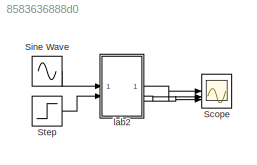
MODEL slx_8583636888d0
KIND model
CONFIG AbsTol = auto
CONFIG EnableMultiTasking = off
CONFIG FixedStep = 0.001
CONFIG MaxStep = auto
CONFIG MinStep = auto
CONFIG RelTol = 1e-3
CONFIG SampleTimeConstraint = Unconstrained
CONFIG SolverName = FixedStepAuto
CONFIG StartTime = 0.0
CONFIG StopTime = 20
BLOCK [Scope] Scope
  Floating = off
  NumInputPorts = 3
  ScopeSpecificationString = Simulink.scopes.TimeScopeBlockCfg('CurrentConfiguration', extmgr.ConfigurationSet(extmgr.Configuration('Core','General UI',true),extmgr.Configuration('Core','Source UI',true),extmgr.Configuration('Sources','WiredSimulink',true),extmgr.Configuration('Visuals','Time Domain',true),extmgr.Configuration('Tools','Plot Navigation',true),extmgr.Configuration('Tools','Measurements',true)),'Version','2023a'...<+1ch>
BLOCK [Sin] Sine Wave
  Phase = 2*pi*1
  SampleTime = 0
BLOCK [Step] Step
  SampleTime = 0
  Time = 2
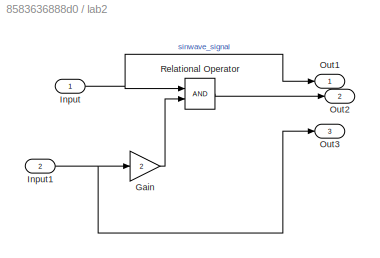
BLOCK [SubSystem] lab2
BLOCK [Gain] lab2/Gain
  Gain = 2
BLOCK [Inport] lab2/Input
BLOCK [Inport] lab2/Input1
  Port = 2
BLOCK [Outport] lab2/Out1
BLOCK [Outport] lab2/Out2
  Port = 2
BLOCK [Outport] lab2/Out3
  Port = 3
BLOCK [RelationalOperator] lab2/Relational Operator
  InputSameDT = off
  OutDataTypeStr = boolean
  RndMeth = Simplest
LINE Sine Wave:1 -> lab2:1
LINE Step:1 -> lab2:2
LINE lab2/Gain:1 -> lab2/Relational Operator:2
NET lab2/Input1:1 -> lab2/Gain:1, lab2/Out3:1
NET lab2/Input:1 -> lab2/Out1:1, lab2/Relational Operator:1
LINE lab2/Relational Operator:1 -> lab2/Out2:1
LINE lab2:1 -> Scope:1
LINE lab2:2 -> Scope:2
LINE lab2:3 -> Scope:3
note: NET lines group one-source signal fan-out (src -> all destinations, sorted); 1:1 wires keep LINE
